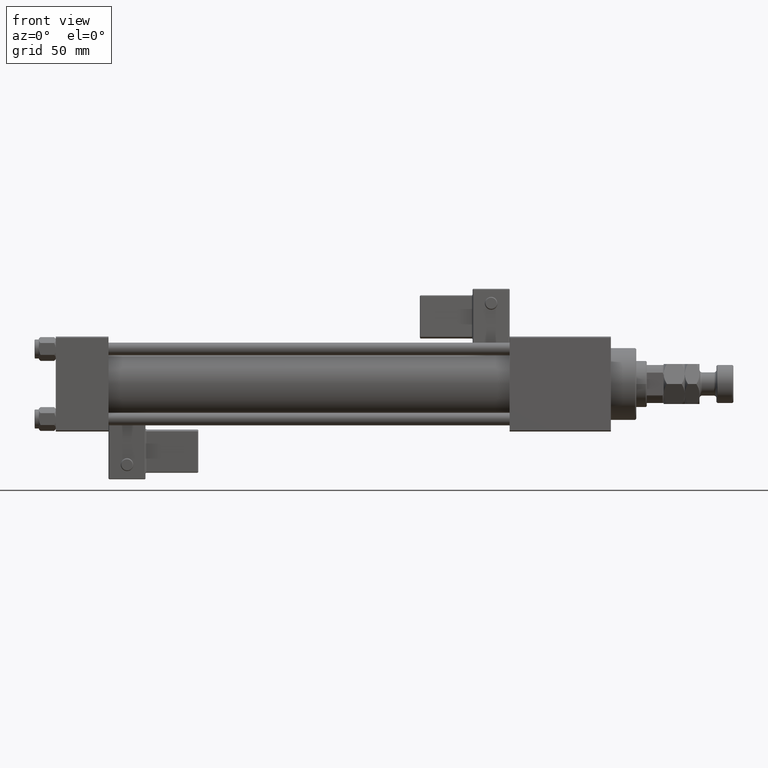
[diagram: clean part render]
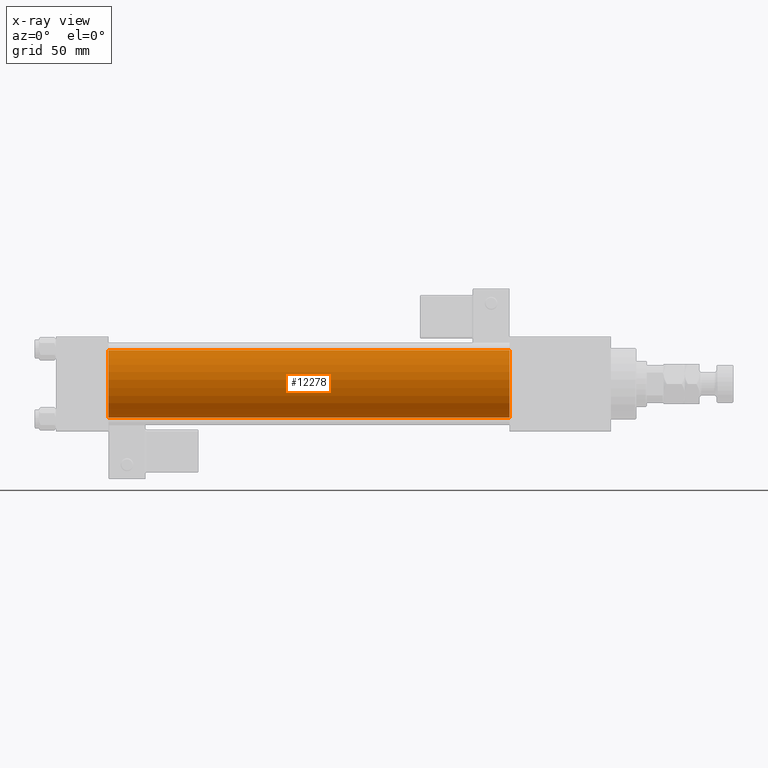
[diagram: x-ray — body ghosted, one internal face saturated and labeled with its STEP entity id]
A machine part, front view, then the same camera in x-ray: the body is ghosted and one INTERNAL B-rep face — a face not visible from any outside direction — is saturated and labeled: STEP entity #12278.
In plain terms, the highlighted cylindrical surface (edge-blend (fillet) strip) has radius 16 mm, axis along (-1, -0, -0).
Its self-contained STEP definition (entity closure, byte-faithful):
#784 = ORIENTED_EDGE ( 'NONE', *, *, #30768, .F. ) ;
#3121 = ORIENTED_EDGE ( 'NONE', *, *, #28068, .T. ) ;
#3907 = DIRECTION ( 'NONE',  ( 0.000000000000000000, 0.000000000000000000, 1.000000000000000000 ) ) ;
#4052 = AXIS2_PLACEMENT_3D ( 'NONE', #35056, #44112, #52082 ) ;
#5118 = CARTESIAN_POINT ( 'NONE',  ( 25.00000000000000000, -2.602085213965210642E-15, 0.000000000000000000 ) ) ;
#7909 = DIRECTION ( 'NONE',  ( -1.000000000000000000, -0.000000000000000000, -0.000000000000000000 ) ) ;
#8495 = VERTEX_POINT ( 'NONE', #9979 ) ;
#9979 = CARTESIAN_POINT ( 'NONE',  ( 215.0000000000000000, -6.426503353294456087E-16, -16.00000000000000000 ) ) ;
#12278 = ADVANCED_FACE ( 'NONE', ( #41482 ), #44781, .F. ) ;
#12397 = VECTOR ( 'NONE', #36109, 1000.000000000000000 ) ;
#14180 = CARTESIAN_POINT ( 'NONE',  ( 215.0000000000000000, -2.602085213965210642E-15, 16.00000000000000000 ) ) ;
#14848 = EDGE_LOOP ( 'NONE', ( #19536, #3121, #37702, #784 ) ) ;
#15331 = LINE ( 'NONE', #41362, #23681 ) ;
#19536 = ORIENTED_EDGE ( 'NONE', *, *, #44861, .T. ) ;
#20383 = CARTESIAN_POINT ( 'NONE',  ( 215.0000000000000000, -2.602085213965210642E-15, 0.000000000000000000 ) ) ;
#23681 = VECTOR ( 'NONE', #7909, 1000.000000000000000 ) ;
#28068 = EDGE_CURVE ( 'NONE', #8495, #28153, #15331, .T. ) ;
#28153 = VERTEX_POINT ( 'NONE', #29564 ) ;
#28274 = CARTESIAN_POINT ( 'NONE',  ( 215.0000000000000000, -2.602085213965210642E-15, 16.00000000000000000 ) ) ;
#29564 = CARTESIAN_POINT ( 'NONE',  ( 25.00000000000000000, -6.426503353294456087E-16, -16.00000000000000000 ) ) ;
#30768 = EDGE_CURVE ( 'NONE', #52823, #47963, #35021, .T. ) ;
#32983 = DIRECTION ( 'NONE',  ( -1.000000000000000000, -0.000000000000000000, -0.000000000000000000 ) ) ;
#35021 = LINE ( 'NONE', #14180, #12397 ) ;
#35056 = CARTESIAN_POINT ( 'NONE',  ( 215.0000000000000000, -2.602085213965210642E-15, 0.000000000000000000 ) ) ;
#35735 = CARTESIAN_POINT ( 'NONE',  ( 25.00000000000000000, -2.602085213965210642E-15, 16.00000000000000000 ) ) ;
#36109 = DIRECTION ( 'NONE',  ( -1.000000000000000000, -0.000000000000000000, -0.000000000000000000 ) ) ;
#37702 = ORIENTED_EDGE ( 'NONE', *, *, #45100, .F. ) ;
#39381 = DIRECTION ( 'NONE',  ( 0.000000000000000000, 0.000000000000000000, -1.000000000000000000 ) ) ;
#41362 = CARTESIAN_POINT ( 'NONE',  ( 215.0000000000000000, -6.426503353294456087E-16, -16.00000000000000000 ) ) ;
#41482 = FACE_OUTER_BOUND ( 'NONE', #14848, .T. ) ;
#41749 = CIRCLE ( 'NONE', #43383, 16.00000000000000000 ) ;
#43383 = AXIS2_PLACEMENT_3D ( 'NONE', #5118, #52018, #39381 ) ;
#44112 = DIRECTION ( 'NONE',  ( 1.000000000000000000, 0.000000000000000000, 0.000000000000000000 ) ) ;
#44781 = CYLINDRICAL_SURFACE ( 'NONE', #52107, 16.00000000000000000 ) ;
#44861 = EDGE_CURVE ( 'NONE', #52823, #8495, #46956, .T. ) ;
#45100 = EDGE_CURVE ( 'NONE', #47963, #28153, #41749, .T. ) ;
#46956 = CIRCLE ( 'NONE', #4052, 16.00000000000000000 ) ;
#47963 = VERTEX_POINT ( 'NONE', #35735 ) ;
#52018 = DIRECTION ( 'NONE',  ( 1.000000000000000000, 0.000000000000000000, 0.000000000000000000 ) ) ;
#52082 = DIRECTION ( 'NONE',  ( 0.000000000000000000, 0.000000000000000000, -1.000000000000000000 ) ) ;
#52107 = AXIS2_PLACEMENT_3D ( 'NONE', #20383, #32983, #3907 ) ;
#52823 = VERTEX_POINT ( 'NONE', #28274 ) ;